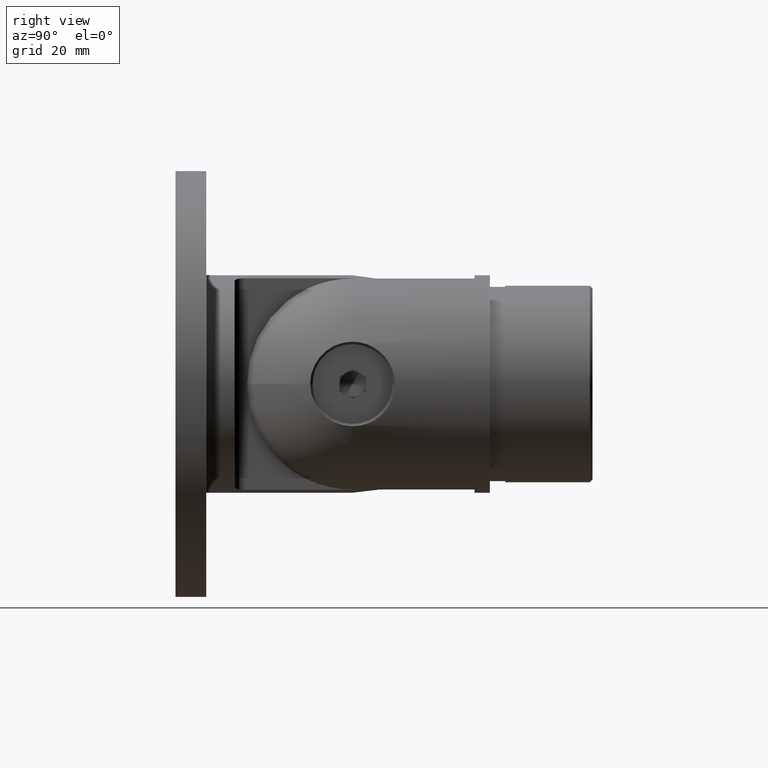
[diagram: clean part render]
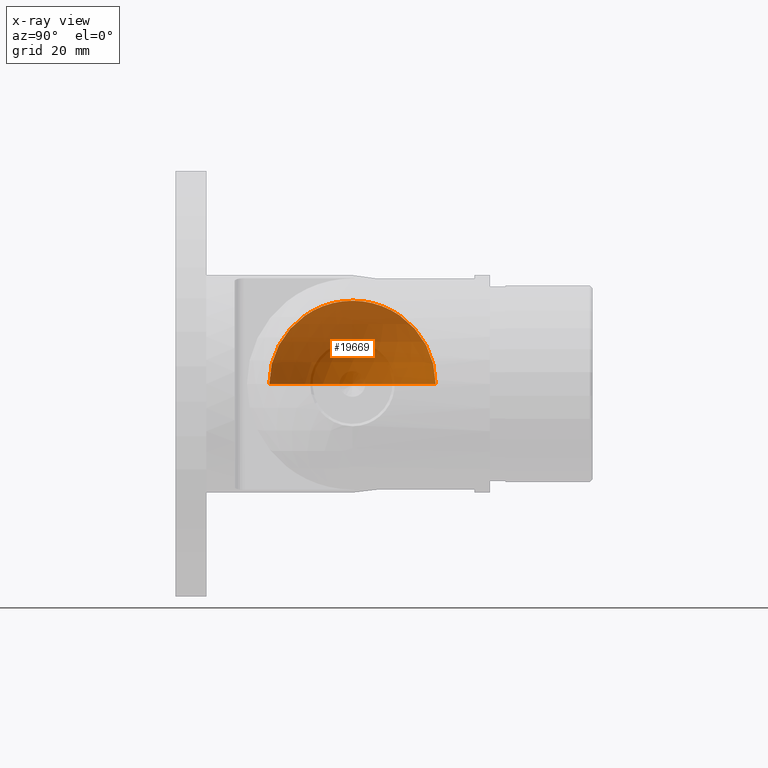
[diagram: x-ray — body ghosted, one internal face saturated and labeled with its STEP entity id]
A machine part, right view, then the same camera in x-ray: the body is ghosted and one INTERNAL B-rep face — a face not visible from any outside direction — is saturated and labeled: STEP entity #19669.
In plain terms, the highlighted spherical surface has radius 17 mm.
Its self-contained STEP definition (entity closure, byte-faithful):
#1069 = AXIS2_PLACEMENT_3D ( 'NONE', #2236, #3932, #21364 ) ;
#2236 = CARTESIAN_POINT ( 'NONE',  ( 0.000000000000000000, 21.20000000000000639, 0.000000000000000000 ) ) ;
#3321 = DIRECTION ( 'NONE',  ( 0.000000000000000000, 0.000000000000000000, 1.000000000000000000 ) ) ;
#3573 = ORIENTED_EDGE ( 'NONE', *, *, #19573, .F. ) ;
#3932 = DIRECTION ( 'NONE',  ( -0.000000000000000000, 0.000000000000000000, 1.000000000000000000 ) ) ;
#4938 = CARTESIAN_POINT ( 'NONE',  ( 0.000000000000000000, 21.20000000000000639, 0.000000000000000000 ) ) ;
#5151 = FACE_OUTER_BOUND ( 'NONE', #8364, .T. ) ;
#5178 = CARTESIAN_POINT ( 'NONE',  ( -5.099999999999993427, 21.20000000000000639, 0.000000000000000000 ) ) ;
#6865 = VERTEX_POINT ( 'NONE', #17240 ) ;
#7757 = CARTESIAN_POINT ( 'NONE',  ( -5.099999999999993427, 4.983033575911926860, 0.000000000000000000 ) ) ;
#8364 = EDGE_LOOP ( 'NONE', ( #8692, #3573 ) ) ;
#8692 = ORIENTED_EDGE ( 'NONE', *, *, #8768, .F. ) ;
#8768 = EDGE_CURVE ( 'NONE', #6865, #22429, #18212, .T. ) ;
#13814 = DIRECTION ( 'NONE',  ( -1.000000000000000000, 0.000000000000000000, 0.000000000000000000 ) ) ;
#14503 = AXIS2_PLACEMENT_3D ( 'NONE', #4938, #22492, #20660 ) ;
#16341 = SPHERICAL_SURFACE ( 'NONE', #14503, 17.00000000000000000 ) ;
#17240 = CARTESIAN_POINT ( 'NONE',  ( -5.099999999999993427, 37.41696642408808771, 0.000000000000000000 ) ) ;
#18212 = CIRCLE ( 'NONE', #1069, 17.00000000000000000 ) ;
#19573 = EDGE_CURVE ( 'NONE', #22429, #6865, #20145, .T. ) ;
#19669 = ADVANCED_FACE ( 'NONE', ( #5151 ), #16341, .F. ) ;
#20145 = CIRCLE ( 'NONE', #20157, 16.21696642408808131 ) ;
#20157 = AXIS2_PLACEMENT_3D ( 'NONE', #5178, #13814, #3321 ) ;
#20660 = DIRECTION ( 'NONE',  ( -1.000000000000000000, 0.000000000000000000, 0.000000000000000000 ) ) ;
#21364 = DIRECTION ( 'NONE',  ( 1.000000000000000000, 0.000000000000000000, 0.000000000000000000 ) ) ;
#22429 = VERTEX_POINT ( 'NONE', #7757 ) ;
#22492 = DIRECTION ( 'NONE',  ( -0.000000000000000000, -0.000000000000000000, -1.000000000000000000 ) ) ;